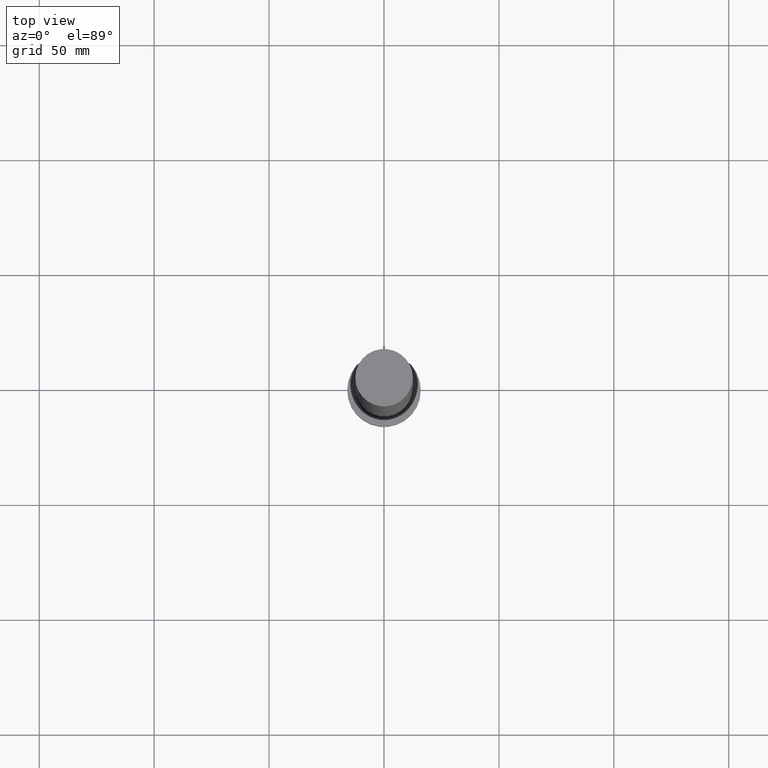
[diagram: clean part render]
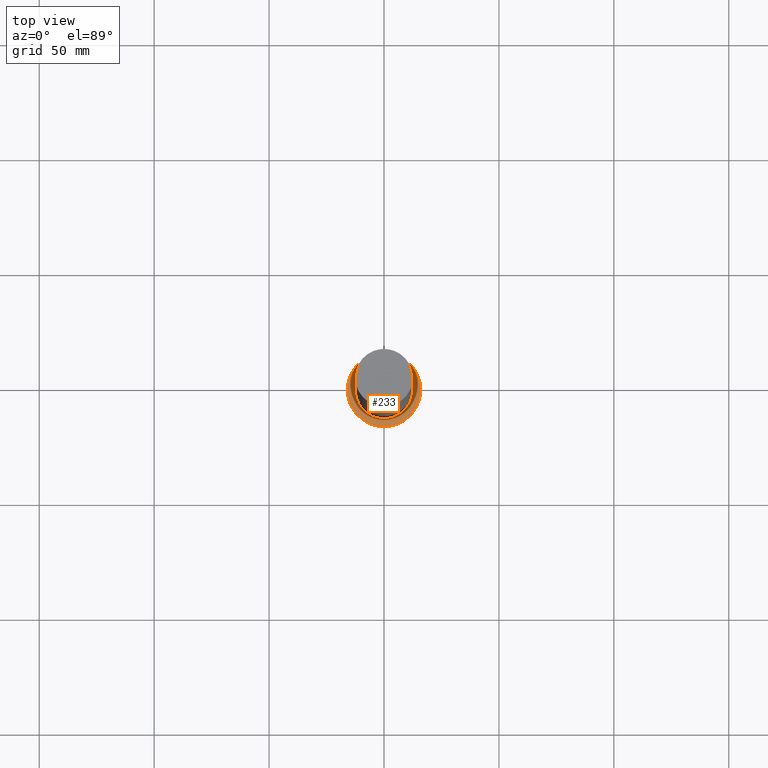
[diagram: same view with one face highlighted and labeled with its STEP entity id]
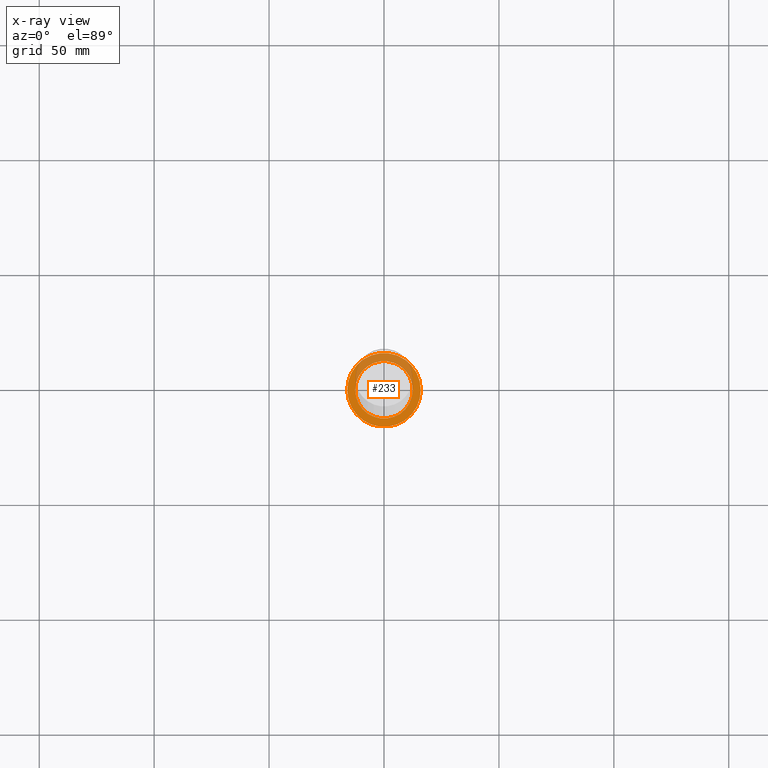
[diagram: x-ray of the same camera — body ghosted, the highlighted face saturated]
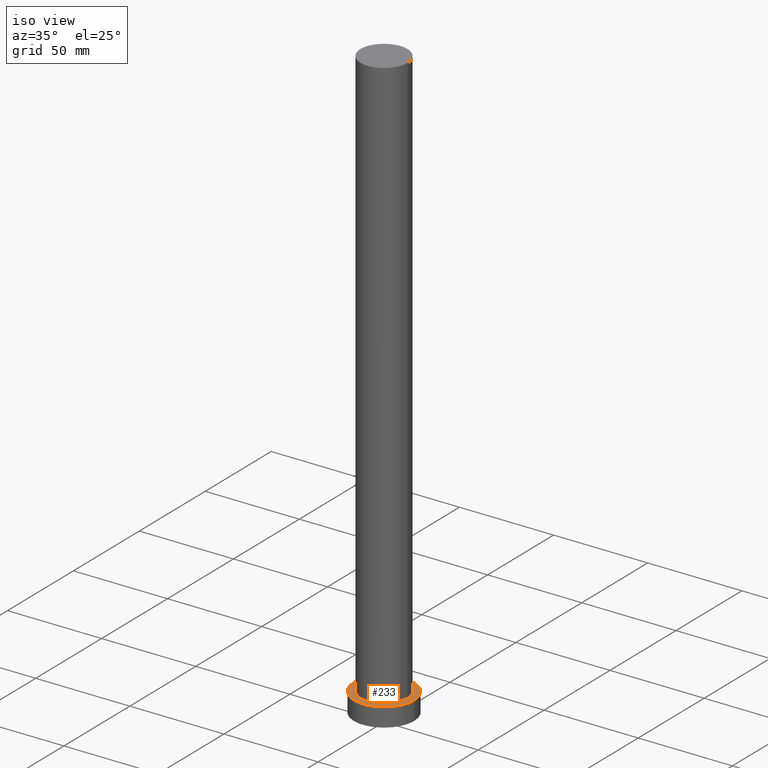
[diagram: same view with one face highlighted and labeled with its STEP entity id]
A machine part, top view. The second image highlights one B-rep face of the part: STEP entity #233.
The next image is the same camera in x-ray: the body ghosted, the highlighted face saturated — about 34% of this face is hidden behind the body in this view.
A second angle (iso view) of the same face is appended — the face is thin or edge-on in the first view.
In plain terms, the highlighted planar face has unit normal (0, 0, 1).
Its self-contained STEP definition (entity closure, byte-faithful):
#7 = DIRECTION ( 'NONE',  ( 0.000000000000000000, 0.000000000000000000, 1.000000000000000000 ) ) ;
#8 = CARTESIAN_POINT ( 'NONE',  ( 0.000000000000000000, 0.000000000000000000, 10.00000000000000000 ) ) ;
#13 = FACE_OUTER_BOUND ( 'NONE', #234, .T. ) ;
#16 = VERTEX_POINT ( 'NONE', #189 ) ;
#18 = AXIS2_PLACEMENT_3D ( 'NONE', #46, #192, #209 ) ;
#23 = CARTESIAN_POINT ( 'NONE',  ( 0.000000000000000000, 0.000000000000000000, 10.00000000000000000 ) ) ;
#30 = DIRECTION ( 'NONE',  ( 0.000000000000000000, 0.000000000000000000, 1.000000000000000000 ) ) ;
#32 = CIRCLE ( 'NONE', #128, 12.50000000000000000 ) ;
#37 = ORIENTED_EDGE ( 'NONE', *, *, #150, .T. ) ;
#46 = CARTESIAN_POINT ( 'NONE',  ( 0.000000000000000000, 0.000000000000000000, 10.00000000000000000 ) ) ;
#55 = CARTESIAN_POINT ( 'NONE',  ( -16.00000000000000000, 0.000000000000000000, 10.00000000000000000 ) ) ;
#65 = ORIENTED_EDGE ( 'NONE', *, *, #103, .F. ) ;
#66 = DIRECTION ( 'NONE',  ( 0.000000000000000000, 0.000000000000000000, 1.000000000000000000 ) ) ;
#70 = DIRECTION ( 'NONE',  ( 1.000000000000000000, 0.000000000000000000, 0.000000000000000000 ) ) ;
#77 = CARTESIAN_POINT ( 'NONE',  ( 12.50000000000000000, 1.530808498934191521E-15, 10.00000000000000000 ) ) ;
#81 = EDGE_CURVE ( 'NONE', #83, #183, #148, .T. ) ;
#83 = VERTEX_POINT ( 'NONE', #55 ) ;
#103 = EDGE_CURVE ( 'NONE', #16, #203, #32, .T. ) ;
#128 = AXIS2_PLACEMENT_3D ( 'NONE', #23, #159, #70 ) ;
#130 = ORIENTED_EDGE ( 'NONE', *, *, #81, .T. ) ;
#136 = AXIS2_PLACEMENT_3D ( 'NONE', #243, #66, #187 ) ;
#145 = EDGE_LOOP ( 'NONE', ( #65, #164 ) ) ;
#148 = CIRCLE ( 'NONE', #136, 16.00000000000000000 ) ;
#150 = EDGE_CURVE ( 'NONE', #183, #83, #181, .T. ) ;
#157 = CARTESIAN_POINT ( 'NONE',  ( 0.000000000000000000, 0.000000000000000000, 10.00000000000000000 ) ) ;
#159 = DIRECTION ( 'NONE',  ( 0.000000000000000000, 0.000000000000000000, 1.000000000000000000 ) ) ;
#163 = PLANE ( 'NONE',  #201 ) ;
#164 = ORIENTED_EDGE ( 'NONE', *, *, #177, .F. ) ;
#177 = EDGE_CURVE ( 'NONE', #203, #16, #239, .T. ) ;
#180 = AXIS2_PLACEMENT_3D ( 'NONE', #157, #7, #207 ) ;
#181 = CIRCLE ( 'NONE', #18, 16.00000000000000000 ) ;
#183 = VERTEX_POINT ( 'NONE', #225 ) ;
#187 = DIRECTION ( 'NONE',  ( 1.000000000000000000, 0.000000000000000000, 0.000000000000000000 ) ) ;
#189 = CARTESIAN_POINT ( 'NONE',  ( -12.50000000000000000, 0.000000000000000000, 10.00000000000000000 ) ) ;
#192 = DIRECTION ( 'NONE',  ( 0.000000000000000000, 0.000000000000000000, 1.000000000000000000 ) ) ;
#201 = AXIS2_PLACEMENT_3D ( 'NONE', #8, #30, #231 ) ;
#203 = VERTEX_POINT ( 'NONE', #77 ) ;
#207 = DIRECTION ( 'NONE',  ( 1.000000000000000000, 0.000000000000000000, 0.000000000000000000 ) ) ;
#209 = DIRECTION ( 'NONE',  ( 1.000000000000000000, 0.000000000000000000, 0.000000000000000000 ) ) ;
#225 = CARTESIAN_POINT ( 'NONE',  ( 16.00000000000000000, 1.959434878635765131E-15, 10.00000000000000000 ) ) ;
#231 = DIRECTION ( 'NONE',  ( 1.000000000000000000, 0.000000000000000000, -0.000000000000000000 ) ) ;
#233 = ADVANCED_FACE ( 'NONE', ( #248, #13 ), #163, .T. ) ;
#234 = EDGE_LOOP ( 'NONE', ( #130, #37 ) ) ;
#239 = CIRCLE ( 'NONE', #180, 12.50000000000000000 ) ;
#243 = CARTESIAN_POINT ( 'NONE',  ( 0.000000000000000000, 0.000000000000000000, 10.00000000000000000 ) ) ;
#248 = FACE_BOUND ( 'NONE', #145, .T. ) ;